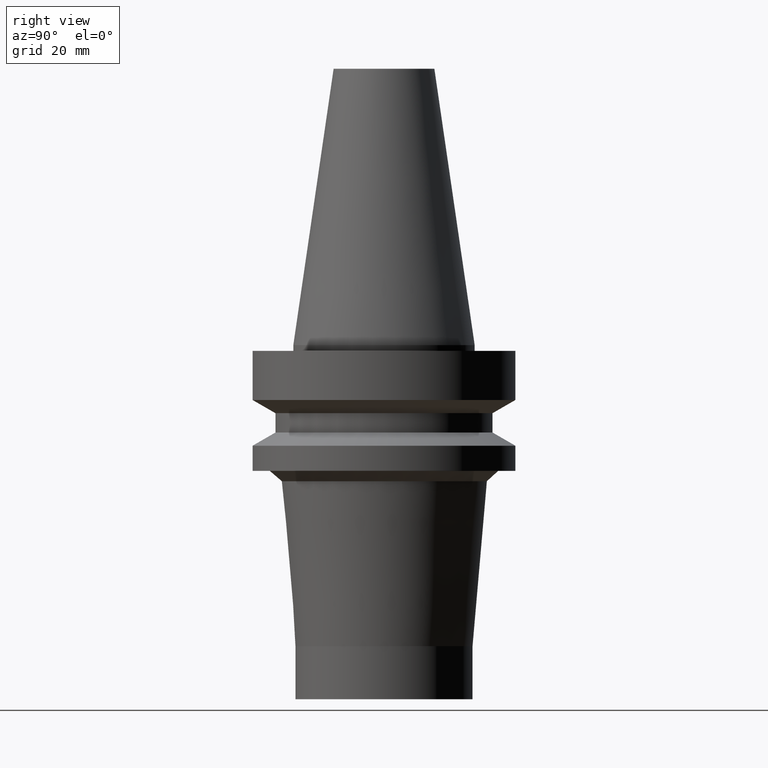
[diagram: clean part render]
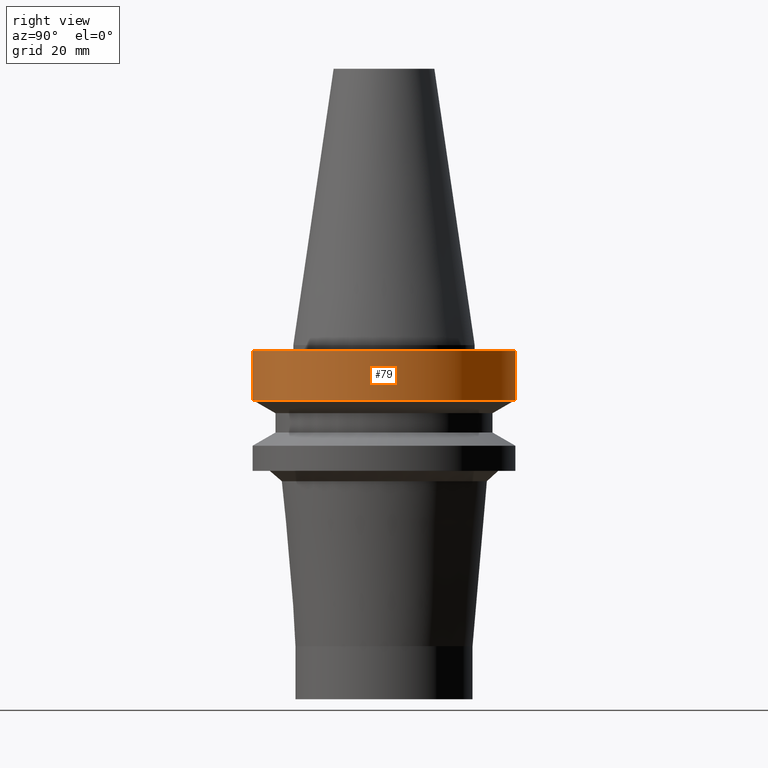
[diagram: same view with one face highlighted and labeled with its STEP entity id]
A machine part, right view. The second image highlights one B-rep face of the part: STEP entity #79.
In plain terms, the highlighted cylindrical surface (bore or boss wall) has radius 23 mm, axis along (-0, -0, 1).
Its self-contained STEP definition (entity closure, byte-faithful):
#79=ADVANCED_FACE('',(#101,#102),#103,.T.);
#101=FACE_BOUND('',#141,.T.);
#102=FACE_BOUND('',#142,.T.);
#103=CYLINDRICAL_SURFACE('',#143,23.0);
#141=EDGE_LOOP('',(#189));
#142=EDGE_LOOP('',(#190));
#143=AXIS2_PLACEMENT_3D('',#191,#192,#193);
#189=ORIENTED_EDGE('',*,*,#242,.F.);
#190=ORIENTED_EDGE('',*,*,#241,.T.);
#191=CARTESIAN_POINT('',(3.24531401774048E-016,6.49062803548097E-016,-5.3));
#192=DIRECTION('',(-6.12323399573677E-017,-1.22464679914716E-016,1.0));
#193=DIRECTION('',(-1.23259516440783E-032,1.0,1.22464679914716E-016));
#241=EDGE_CURVE('',#257,#257,#258,.T.);
#242=EDGE_CURVE('',#259,#259,#260,.T.);
#257=VERTEX_POINT('',#283);
#258=CIRCLE('',#284,23.0);
#259=VERTEX_POINT('',#285);
#260=CIRCLE('',#286,23.0);
#283=CARTESIAN_POINT('',(6.12323399573674E-017,23.0,-0.999999999999997));
#284=AXIS2_PLACEMENT_3D('',#312,#313,#314);
#285=CARTESIAN_POINT('',(5.87830463590729E-016,23.0,-9.6));
#286=AXIS2_PLACEMENT_3D('',#315,#316,#317);
#312=CARTESIAN_POINT('',(6.12323399573677E-017,1.22464679914735E-016,-1.0));
#313=DIRECTION('',(6.12323399573677E-017,1.22464679914716E-016,-1.0));
#314=DIRECTION('',(-1.23259516440783E-032,1.0,1.22464679914716E-016));
#315=CARTESIAN_POINT('',(5.8783046359073E-016,1.17566092718146E-015,-9.6));
#316=DIRECTION('',(6.12323399573677E-017,1.22464679914716E-016,-1.0));
#317=DIRECTION('',(-1.23259516440783E-032,1.0,1.22464679914716E-016));